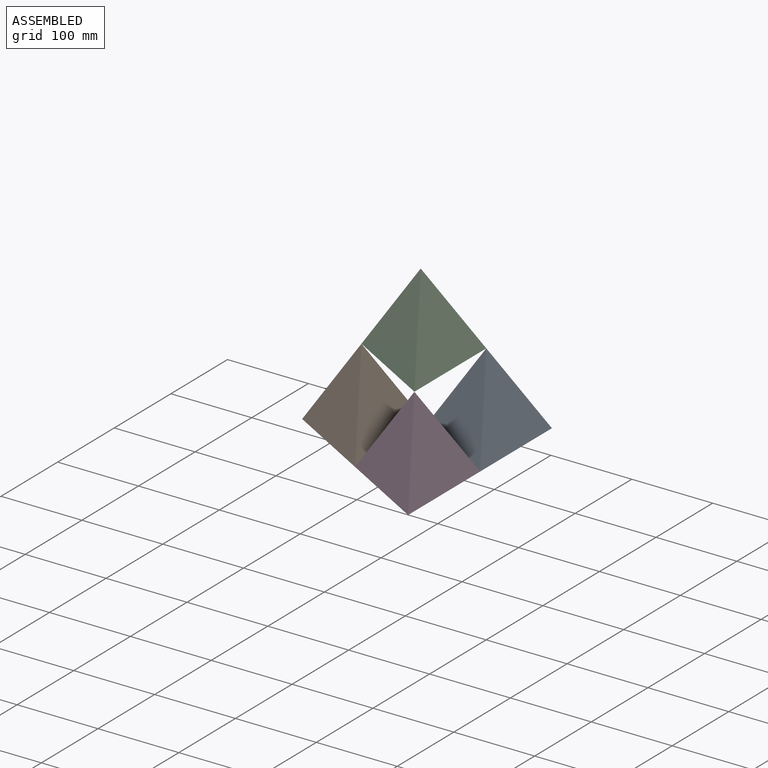
[diagram: assembled view]
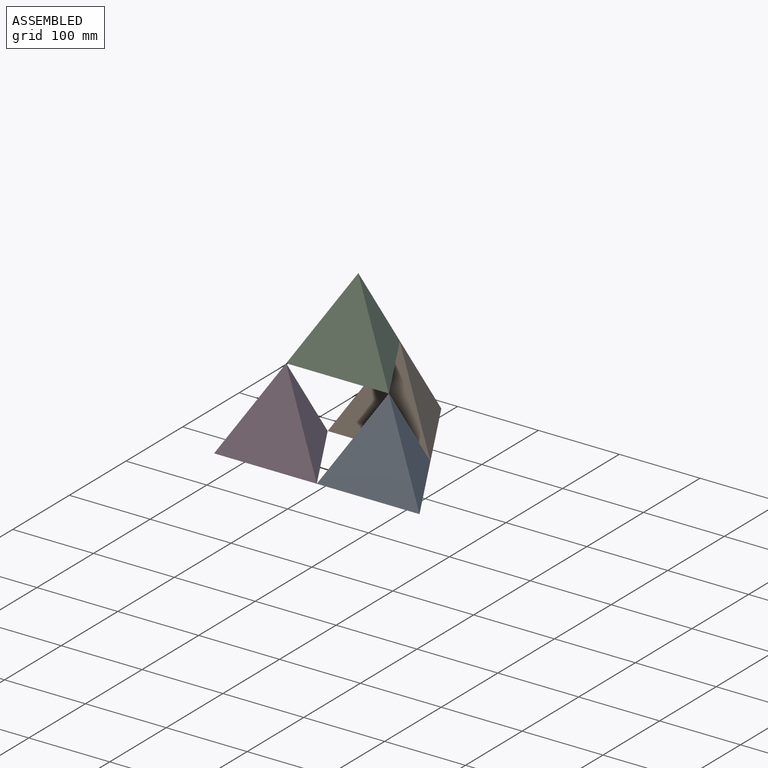
[diagram: assembled view, second angle]
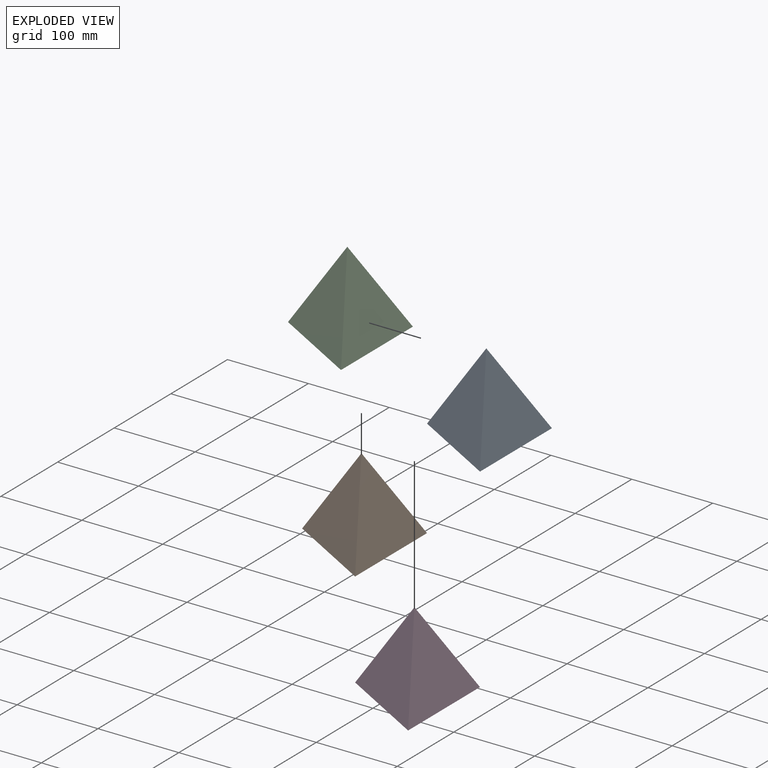
[diagram: exploded view]
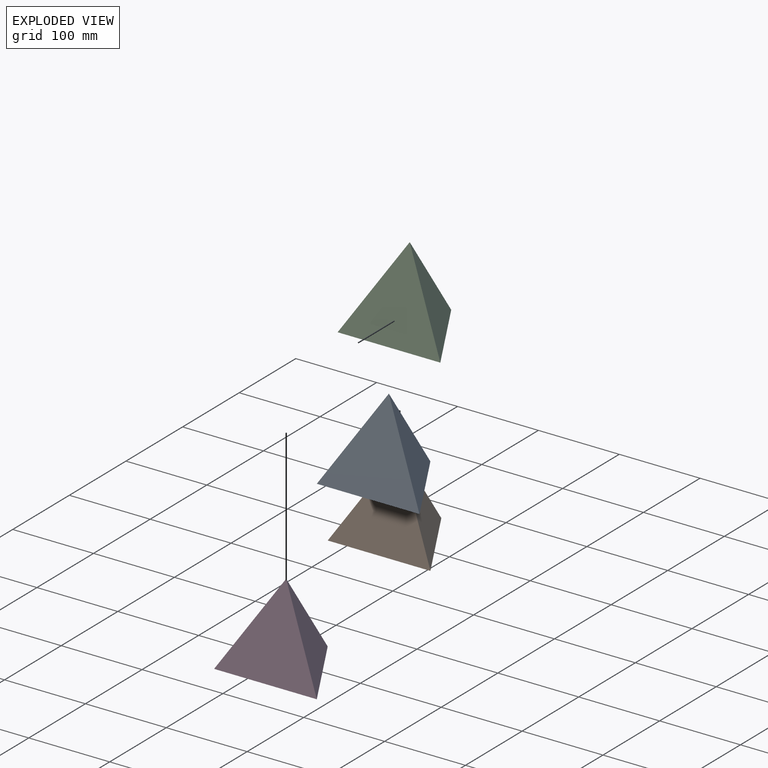
[diagram: exploded view, second angle]
ASSEMBLY  parts=4 mates=2
PART A: 4 faces, bbox 110x127x103.7 mm
  f0: plane 109.99x103.7mm, normal (-0.47,0.82,0.33), area 6984.1mm2, adj f1,f2,f3
  f1: plane 127x103.7mm, normal (0.94,0,0.33), area 6984.1mm2, adj f0,f2,f3
  f2: plane 127x109.99mm, normal (0,0,-1), area 6984.1mm2, adj f0,f1,f3
  f3: plane 109.99x103.7mm, normal (-0.47,-0.82,0.33), area 6984.1mm2, adj f0,f1,f2
PART B: same geometry as A
PART C: same geometry as A
PART D: same geometry as A
PLACE A t=(30.54,56.68,-35.37)mm
PLACE B t=(-79.45,-6.82,-35.37)mm fixed
PLACE C t=(-6.12,-6.82,68.32)mm
PLACE D t=(30.54,-70.32,-35.37)mm
MATE planar B.f2 <-> A.f2  axis (0,0,-1) through (-79.45,-6.82,-35.37)mm
MATE planar A.f2 <-> D.f2  axis (0,0,-1) through (30.54,56.68,-35.37)mm
